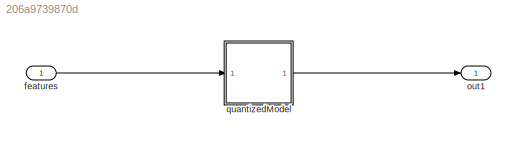
MODEL slx_206a9739870d
KIND model
CONFIG AbsTol = auto
CONFIG EnableMultiTasking = off
CONFIG FixedStep = auto
CONFIG MaxStep = auto
CONFIG MinStep = auto
CONFIG RelTol = 1e-3
CONFIG SampleTimeConstraint = Unconstrained
CONFIG SolverName = FixedStepAuto
CONFIG StartTime = 0.0
CONFIG StopTime = 10.0
BLOCK [Inport] features
  PortDimensions = [35]
BLOCK [Outport] out1
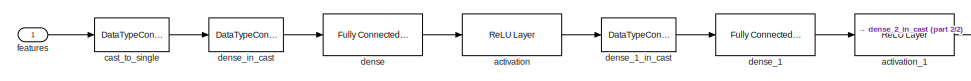
[diagram: quantizedModel - part 1/2, middle left region]
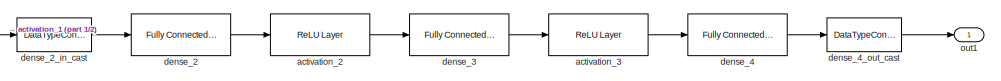
[diagram: quantizedModel - part 2/2, middle right region]
BLOCK [SubSystem] quantizedModel
BLOCK [Reference] quantizedModel/activation  REF=dlactivationlib/ReLU Layer
  SourceBlock = dlactivationlib/ReLU Layer
  SourceType = ReLU Layer
BLOCK [Reference] quantizedModel/activation_1  REF=dlactivationlib/ReLU Layer
  SourceBlock = dlactivationlib/ReLU Layer
  SourceType = ReLU Layer
BLOCK [Reference] quantizedModel/activation_2  REF=dlactivationlib/ReLU Layer
  SourceBlock = dlactivationlib/ReLU Layer
  SourceType = ReLU Layer
BLOCK [Reference] quantizedModel/activation_3  REF=dlactivationlib/ReLU Layer
  SourceBlock = dlactivationlib/ReLU Layer
  SourceType = ReLU Layer
BLOCK [DataTypeConversion] quantizedModel/cast_to_single
  OutDataTypeStr = single
  RndMeth = Floor
  SaturateOnIntegerOverflow = off
BLOCK [Reference] quantizedModel/dense  REF=dlconvfclib/Fully Connected Layer
  SourceBlock = dlconvfclib/Fully Connected Layer
  SourceType = Fully Connected Layer
BLOCK [Reference] quantizedModel/dense_1  REF=dlconvfclib/Fully Connected Layer
  SourceBlock = dlconvfclib/Fully Connected Layer
  SourceType = Fully Connected Layer
BLOCK [DataTypeConversion] quantizedModel/dense_1_in_cast
  OutDataTypeStr = fixdt(1,8,3)
  RndMeth = Nearest
BLOCK [Reference] quantizedModel/dense_2  REF=dlconvfclib/Fully Connected Layer
  SourceBlock = dlconvfclib/Fully Connected Layer
  SourceType = Fully Connected Layer
BLOCK [DataTypeConversion] quantizedModel/dense_2_in_cast
  OutDataTypeStr = fixdt(1,8,2)
  RndMeth = Nearest
BLOCK [Reference] quantizedModel/dense_3  REF=dlconvfclib/Fully Connected Layer
  SourceBlock = dlconvfclib/Fully Connected Layer
  SourceType = Fully Connected Layer
BLOCK [Reference] quantizedModel/dense_4  REF=dlconvfclib/Fully Connected Layer
  SourceBlock = dlconvfclib/Fully Connected Layer
  SourceType = Fully Connected Layer
BLOCK [DataTypeConversion] quantizedModel/dense_4_out_cast
  OutDataTypeStr = fixdt('single')
  RndMeth = Nearest
BLOCK [DataTypeConversion] quantizedModel/dense_in_cast
  OutDataTypeStr = fixdt(1,8,6)
  RndMeth = Nearest
BLOCK [Inport] quantizedModel/features
  PortDimensions = [35]
BLOCK [Outport] quantizedModel/out1
LINE features:1 -> quantizedModel:1
LINE quantizedModel/activation:1 -> quantizedModel/dense_1_in_cast:1
LINE quantizedModel/activation_1:1 -> quantizedModel/dense_2_in_cast:1
LINE quantizedModel/activation_2:1 -> quantizedModel/dense_3:1
LINE quantizedModel/activation_3:1 -> quantizedModel/dense_4:1
LINE quantizedModel/cast_to_single:1 -> quantizedModel/dense_in_cast:1
LINE quantizedModel/dense:1 -> quantizedModel/activation:1
LINE quantizedModel/dense_1:1 -> quantizedModel/activation_1:1
LINE quantizedModel/dense_1_in_cast:1 -> quantizedModel/dense_1:1
LINE quantizedModel/dense_2:1 -> quantizedModel/activation_2:1
LINE quantizedModel/dense_2_in_cast:1 -> quantizedModel/dense_2:1
LINE quantizedModel/dense_3:1 -> quantizedModel/activation_3:1
LINE quantizedModel/dense_4:1 -> quantizedModel/dense_4_out_cast:1
LINE quantizedModel/dense_4_out_cast:1 -> quantizedModel/out1:1
LINE quantizedModel/dense_in_cast:1 -> quantizedModel/dense:1
LINE quantizedModel/features:1 -> quantizedModel/cast_to_single:1
LINE quantizedModel:1 -> out1:1
